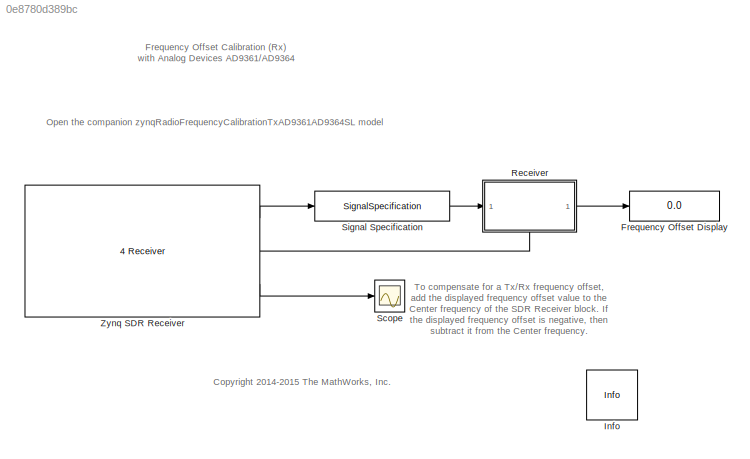
MODEL slx_0e8780d389bc
KIND model
CONFIG AbsTol = auto
CONFIG FixedStep = auto
CONFIG MaxStep = auto
CONFIG MinStep = auto
CONFIG RelTol = 1e-3
CONFIG SampleTimeConstraint = Unconstrained
CONFIG Solver = FixedStepDiscrete
CONFIG SolverMode = Auto
CONFIG SolverName = FixedStepDiscrete
CONFIG StartTime = 0.0
CONFIG StopTime = inf
BLOCK [Display] Frequency Offset Display
  Decimation = 1
  Ports = [1]
BLOCK [Reference] Info  REF=sdrzblksprivate/Info
  Ports = []
  SourceBlock = sdrzblksprivate/Info
  SourceType = Info
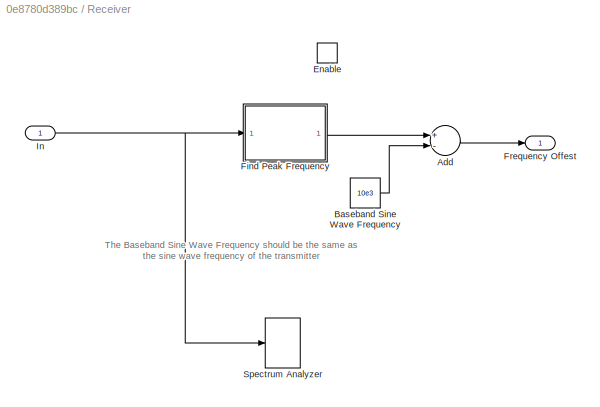
BLOCK [SubSystem] Receiver
  Ports = [1, 1, 1]
  RequestExecContextInheritance = off
  Variant = off
BLOCK [Sum] Receiver/Add
  InputSameDT = off
  Inputs = +-
  OutDataTypeStr = Inherit: Inherit via internal rule
  Ports = [2, 1]
  SaturateOnIntegerOverflow = off
BLOCK [Constant] Receiver/Baseband Sine Wave Frequency
  Value = 10e3
BLOCK [EnablePort] Receiver/Enable
  Ports = []
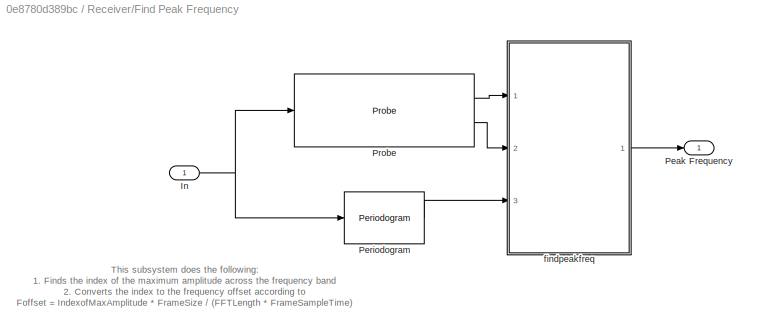
BLOCK [SubSystem] Receiver/Find Peak Frequency
  Ports = [1, 1]
  RequestExecContextInheritance = off
  Variant = off
BLOCK [Inport] Receiver/Find Peak Frequency/In
  IconDisplay = Port number
BLOCK [Outport] Receiver/Find Peak Frequency/Peak Frequency
  IconDisplay = Port number
BLOCK [Reference] Receiver/Find Peak Frequency/Periodogram  REF=dspspect3/Periodogram
  Ports = [1, 1]
  SourceBlock = dspspect3/Periodogram
  SourceType = Periodogram
BLOCK [Probe] Receiver/Find Peak Frequency/Probe
  Ports = [1, 2]
  ProbeComplexSignal = off
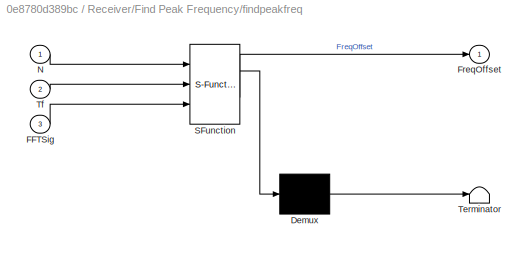
BLOCK [SubSystem] Receiver/Find Peak Frequency/findpeakfreq
  ErrorFcn = Stateflow.Translate.translate
  PermitHierarchicalResolution = ExplicitOnly
  Ports = [3, 1]
  RequestExecContextInheritance = off
  SFBlockType = MATLAB Function
  TreatAsAtomicUnit = on
  Variant = off
BLOCK [Demux] Receiver/Find Peak Frequency/findpeakfreq/ Demux 
  Outputs = 1
  Ports = [1, 1]
BLOCK [S-Function] Receiver/Find Peak Frequency/findpeakfreq/ SFunction 
  EnableBusSupport = off
  FunctionName = sf_sfun
  PortCounts = [3 2]
  Ports = [3, 2]
  SFunctionDeploymentMode = off
  Tag = Stateflow S-Function zynqRadioFrequencyCalibrationRxAD9361AD9364SL 1
BLOCK [Terminator] Receiver/Find Peak Frequency/findpeakfreq/ Terminator 
BLOCK [Inport] Receiver/Find Peak Frequency/findpeakfreq/FFTSig
  IconDisplay = Port number
  Port = 3
BLOCK [Outport] Receiver/Find Peak Frequency/findpeakfreq/FreqOffset
  IconDisplay = Port number
BLOCK [Inport] Receiver/Find Peak Frequency/findpeakfreq/N
  IconDisplay = Port number
BLOCK [Inport] Receiver/Find Peak Frequency/findpeakfreq/Tf
  IconDisplay = Port number
  Port = 2
BLOCK [Outport] Receiver/Frequency Offest
  IconDisplay = Port number
BLOCK [Inport] Receiver/In
  IconDisplay = Port number
BLOCK [SpectrumAnalyzer] Receiver/Spectrum Analyzer
  NumInputPorts = 1
  Ports = [1]
  ScopeSpecificationString = spbscopes.SpectrumAnalyzerBlockCfg('CurrentConfiguration', extmgr.ConfigurationSet(extmgr.Configuration('Core','General UI',true),extmgr.Configuration('Core','Source UI',true),extmgr.Configuration('Sources','WiredSimulink',true),extmgr.Configuration('Sources','Simulink',false),extmgr.Configuration('Sources','File',false),extmgr.Configuration('Sources','Workspace',false),extmgr.Configuration('Sourc...<+7074ch>
BLOCK [Scope] Scope
  Ports = [1]
  ScopeSpecificationString = C++SS(StrPVP('Location','[1229, 373, 1892, 808]'),StrPVP('Open','off'),StrPVP('ZoomMode','yonly'),MxPVP('AxesTitles',24,'struct(''axes1'',''%<SignalLabel>'')'),MxPVP('ScopeGraphics',28,'struct(''FigureColor'',''[0.5 0.5 0.5]'',''AxesColor'',''[0 0 0]'',''AxesTickColor'',''[1 1 1]'',''LineColors'',''[1 1 0;1 0 1;0 1 1;1 0 0;0 1 0;0 0 1]'',''LineStyles'',''-|-|-|-|-|-'',''LineWidths'',''[0.5 0.5 0.5...<+304ch>
BLOCK [SignalSpecification] Signal Specification
  SampleTime = 4096/520841
  SamplingMode = Sample based
BLOCK [Reference] Zynq SDR Receiver  REF=zc706fmc234_lib/ZC706 and 
FMCOMMS2//3//4 
Receiver
  Ports = [0, 3]
  SourceBlock = zc706fmc234_lib/ZC706 and \nFMCOMMS2//3//4 \nReceiver
  SourceType = comm.internal.SDRRxZC706FMC234SL
ANNOTATION (root): <copyright redacted>
ANNOTATION (root): Frequency Offset Calibration (Rx) with Analog Devices AD9361/AD9364
ANNOTATION (root): Open the companion zynqRadioFrequencyCalibrationTxAD9361AD9364SL model
ANNOTATION (root): To compensate for a Tx/Rx frequency offset, add the displayed frequency offset value to the Center frequency of the SDR Receiver block. If the displayed frequency offset is negative, then subtract it from the Center frequency.
ANNOTATION Receiver: The Baseband Sine Wave Frequency should be the same as the sine wave frequency of the transmitter
ANNOTATION Receiver/Find Peak Frequency: This subsystem does the following: 1. Finds the index of the maximum amplitude across the frequency band 2. Converts the index to the frequency offset according to Foffset = IndexofMaxAmplitude * FrameSize / (FFTLength * FrameSampleTime)
LINE Receiver/Add:1 -> Receiver/Frequency Offest:1
LINE Receiver/Baseband Sine Wave Frequency:1 -> Receiver/Add:2
NET Receiver/Find Peak Frequency/In:1 -> Receiver/Find Peak Frequency/Periodogram:1, Receiver/Find Peak Frequency/Probe:1
LINE Receiver/Find Peak Frequency/Periodogram:1 -> Receiver/Find Peak Frequency/findpeakfreq:3
LINE Receiver/Find Peak Frequency/Probe:1 -> Receiver/Find Peak Frequency/findpeakfreq:1
LINE Receiver/Find Peak Frequency/Probe:2 -> Receiver/Find Peak Frequency/findpeakfreq:2
LINE Receiver/Find Peak Frequency/findpeakfreq:1 -> Receiver/Find Peak Frequency/Peak Frequency:1
LINE Receiver/Find Peak Frequency:1 -> Receiver/Add:1
NET Receiver/In:1 -> Receiver/Find Peak Frequency:1, Receiver/Spectrum Analyzer:1
LINE Receiver:1 -> Frequency Offset Display:1
LINE Signal Specification:1 -> Receiver:1
LINE Zynq SDR Receiver:1 -> Signal Specification:1
LINE Zynq SDR Receiver:2 -> Receiver:enable
LINE Zynq SDR Receiver:3 -> Scope:1
note: NET lines group one-source signal fan-out (src -> all destinations, sorted); 1:1 wires keep LINE
CHART Receiver/Find Peak
Frequency/findpeakfreq states=1 transitions=1
  STATE_LABEL 'eML_blk_kernel()'
  STATE_LABEL 'SCRIPT:\nfunction FreqOffset  = findpeakfreq(N, Tf, FFTSig)\n% Find peak frequency\n% N - frame size\n% Tf - frame sample time\n% FFTSig - result of FFT\n\n%#codegen\n\nFFTSize = length(FFTSig);\nFFTSig = fftshift(FFTSig);\n[~, maxIdx] = max(FFTSig); % Find index of max magnitude\nOffsetIdx = maxIdx-1-FFTSize/2; % Convert to index symmetric with 0\nTs = Tf(1)/N; % Sample time\ndelta_f = 1/Ts/FFTSize; % Frequenc...<+87ch>'
